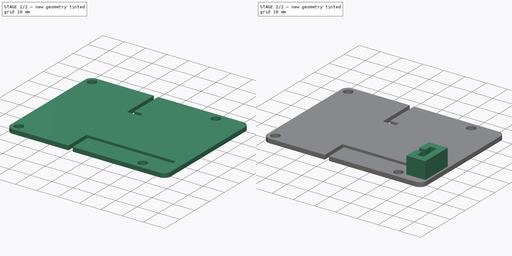
[diagram: build sequence overview — one tinted view per stage of 2, left to right]
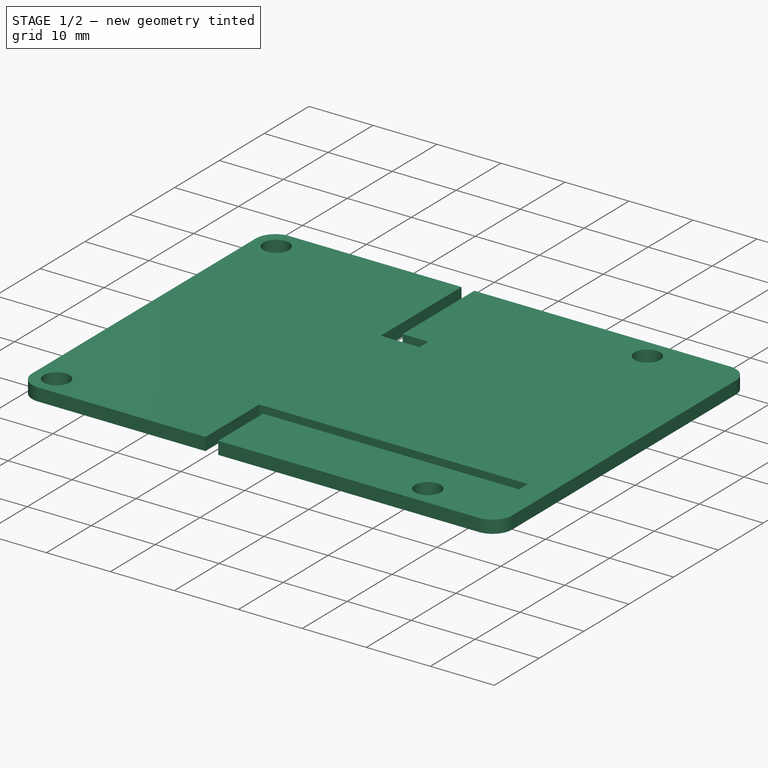
[diagram: stage 1 of 2 — iso view after this stage's code; geometry added in this stage tinted green]
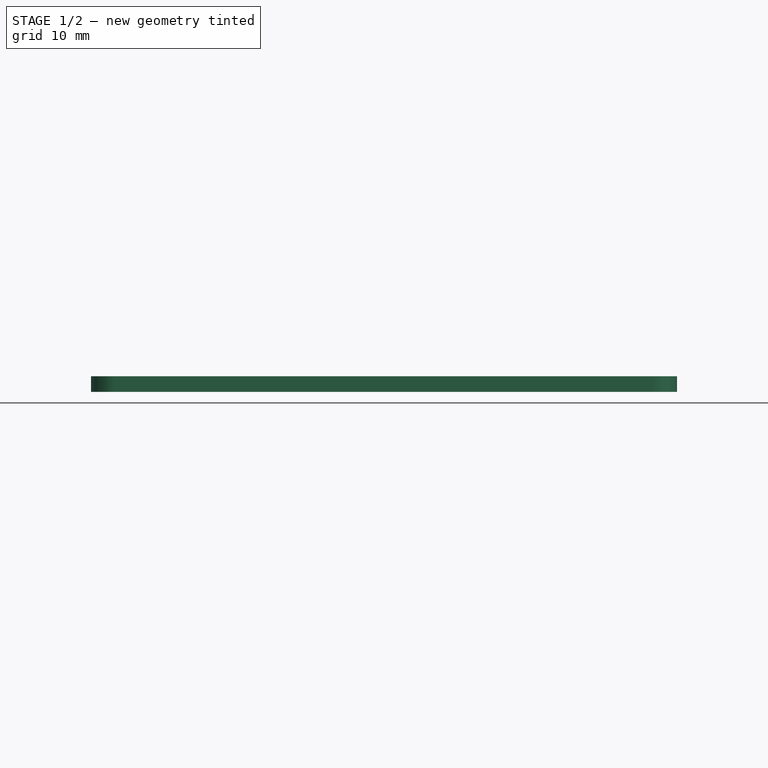
[diagram: stage 1 of 2 — front view after this stage's code; geometry added in this stage tinted green]
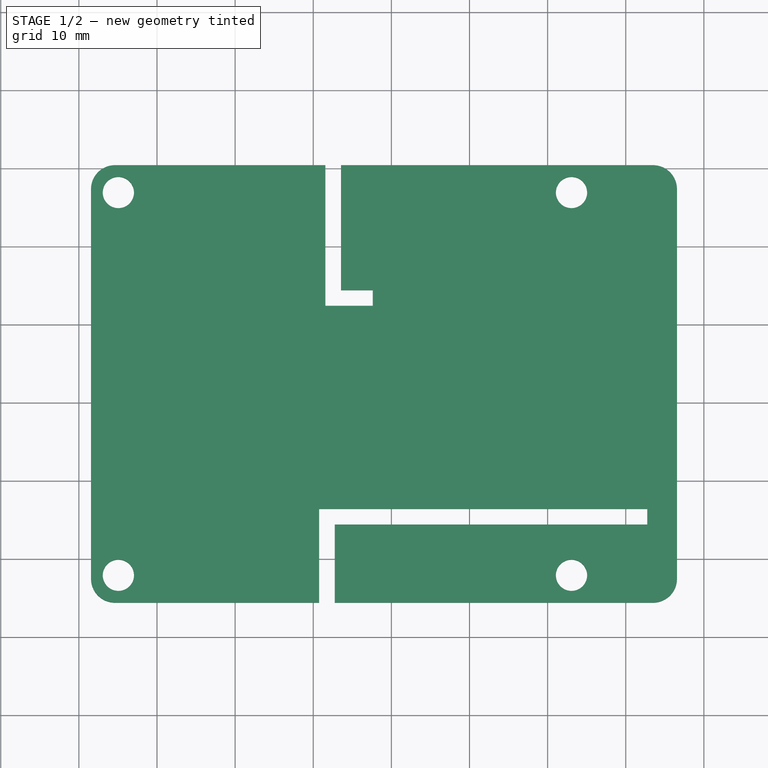
[diagram: stage 1 of 2 — top view after this stage's code; geometry added in this stage tinted green]
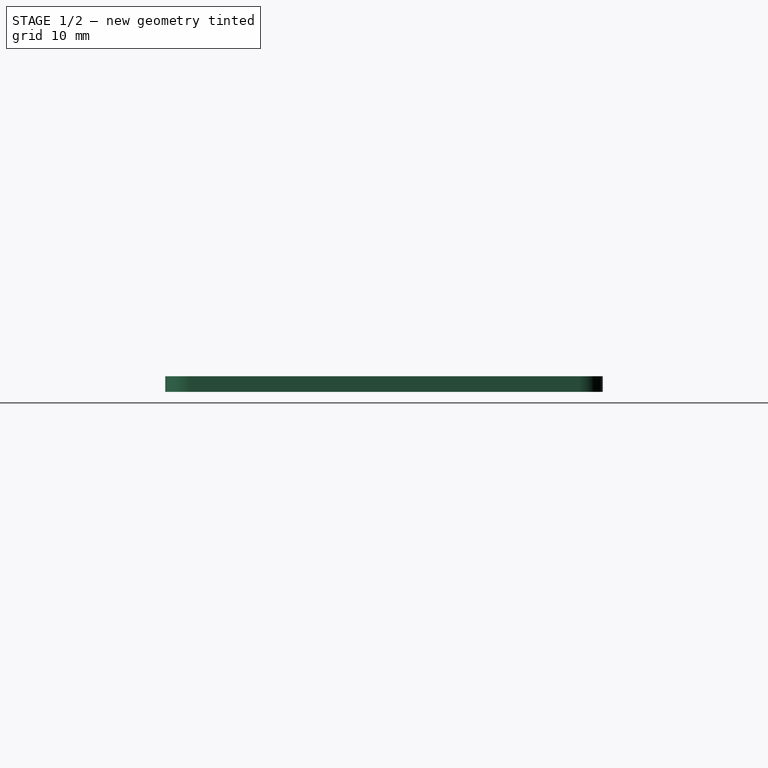
[diagram: stage 1 of 2 — right view after this stage's code; geometry added in this stage tinted green]
FCSTD DOCUMENT  (FreeCAD 0.21R33694 (Git))
Label: LoRaWAN_Gateway_hat_cover
License: All rights reserved
LicenseURL: http://en.wikipedia.org/wiki/All_rights_reserved
objects: Sketcher::SketchObject×2, PartDesign::Pad×2, Part::Feature×1, PartDesign::SubShapeBinder×1, PartDesign::Body×1
note: 9 computed .brp shape members not serialized (recipe doc carries the construction recipe); baked Part::Feature solids carry a one-line shape summary decoded from their .brp

FEATURE [Part::Feature] Part__Feature  label="Raspberry Pi 3 Light Version"
  shape: bbox 89.96 x 57.63 x 18.91 mm, 9075 faces, 217 solids (baked)
FEATURE [PartDesign::SubShapeBinder] Binder
  BindCopyOnChange = 0
  BindMode = 0
  ClaimChildren = false
  Context = -> Body [Binder.]
  Fuse = false
  MakeFace = true
  OffsetFill = false
  OffsetIntersection = false
  OffsetJoinType = 0
  OffsetOpenResult = false
  PartialLoad = false
  Relative = true
  Support = -> [Part__Feature]
  _Version = 2
FEATURE [Sketcher::SketchObject] Sketch001
  ExternalGeometry = -> [Binder]
  FullyConstrained = false
  MapMode = 5
  Support = -> [XY_Plane]
  sketch-geometry (24):
    g0: LineSegment StartX=-45.3809 StartY=30.4107 StartZ=0 EndX=-18.442 EndY=30.4107 EndZ=0
    g1: LineSegment StartX=26.558 StartY=27.3472 StartZ=0 EndX=26.558 EndY=-22.5308 EndZ=0
    g2: LineSegment StartX=23.4969 StartY=-25.5919 StartZ=0 EndX=-17.2391 EndY=-25.5919 EndZ=0
    g3: LineSegment StartX=-48.442 StartY=-22.5282 StartZ=0 EndX=-48.442 EndY=27.3496 EndZ=0
    g4: ArcOfCircle CenterX=-45.3809 CenterY=27.3496 CenterZ=0 NormalX=0 NormalY=0 NormalZ=1 AngleXU=0 Radius=3.0611 StartAngle=1.5708 EndAngle=3.14159
    g5: ArcOfCircle CenterX=23.4969 CenterY=27.3472 CenterZ=0 NormalX=0 NormalY=0 NormalZ=1 AngleXU=0 Radius=3.0611 StartAngle=0 EndAngle=1.57075
    g6: ArcOfCircle CenterX=23.4969 CenterY=-22.5308 CenterZ=0 NormalX=0 NormalY=0 NormalZ=1 AngleXU=0 Radius=3.0611 StartAngle=4.71239 EndAngle=6.28319
    g7: ArcOfCircle CenterX=-45.3809 CenterY=-22.5282 CenterZ=0 NormalX=0 NormalY=0 NormalZ=1 AngleXU=0 Radius=3.0611 StartAngle=3.14159 EndAngle=4.71236
    g8: Circle CenterX=-44.942 CenterY=26.9107 CenterZ=0 NormalX=0 NormalY=0 NormalZ=1 AngleXU=0 Radius=2
    g9: Circle CenterX=13.058 CenterY=26.9107 CenterZ=0 NormalX=0 NormalY=0 NormalZ=1 AngleXU=0 Radius=2
    g10: Circle CenterX=13.058 CenterY=-22.0893 CenterZ=0 NormalX=0 NormalY=0 NormalZ=1 AngleXU=0 Radius=2
    g11: Circle CenterX=-44.942 CenterY=-22.0893 CenterZ=0 NormalX=0 NormalY=0 NormalZ=1 AngleXU=0 Radius=2
    g12: LineSegment StartX=-16.442 StartY=30.4107 StartZ=0 EndX=-16.442 EndY=14.4114 EndZ=0
    g13: LineSegment StartX=-18.442 StartY=12.4114 StartZ=0 EndX=-12.3842 EndY=12.4114 EndZ=0
    g14: LineSegment StartX=-12.3842 StartY=12.4114 StartZ=0 EndX=-12.3842 EndY=14.4114 EndZ=0
    g15: LineSegment StartX=-12.3842 StartY=14.4114 StartZ=0 EndX=-16.442 EndY=14.4114 EndZ=0
    g16: LineSegment StartX=-16.442 StartY=30.4107 StartZ=0 EndX=23.4971 EndY=30.4083 EndZ=0
    g17: LineSegment StartX=-18.442 StartY=30.4107 StartZ=0 EndX=-18.442 EndY=12.4114 EndZ=0
    g18: LineSegment StartX=-19.2391 StartY=-25.5893 StartZ=0 EndX=-19.2391 EndY=-13.5893 EndZ=0
    g19: LineSegment StartX=-19.2391 StartY=-13.5893 StartZ=0 EndX=22.7609 EndY=-13.5893 EndZ=0
    g20: LineSegment StartX=22.7609 StartY=-13.5893 StartZ=0 EndX=22.7609 EndY=-15.5893 EndZ=0
    g21: LineSegment StartX=22.7609 StartY=-15.5893 StartZ=0 EndX=-17.2391 EndY=-15.5893 EndZ=0
    g22: LineSegment StartX=-17.2391 StartY=-15.5893 StartZ=0 EndX=-17.2391 EndY=-25.5919 EndZ=0
    g23: LineSegment StartX=-19.2391 StartY=-25.5893 StartZ=0 EndX=-45.3809 EndY=-25.5893 EndZ=0
  constraints (57):
    c: Horizontal(g0)
    c: Horizontal(g2)
    c: Vertical(g1)
    c: Vertical(g3)
    c: Tangent(g0,g4) = 1.5708
    c: Tangent(g3,g4) = 1.5708
    c: Coincident(g16,g5) = 1.5708
    c: Tangent(g1,g5) = 1.5708
    c: Tangent(g2,g6) = 1.5708
    c: Tangent(g1,g6) = 1.5708
    c: Coincident(g23,g7) = 1.5708
    c: Tangent(g3,g7) = 1.5708
    c: Coincident(g8,g-3)
    c: Coincident(g9,g-4)
    c: Coincident(g10,g-8)
    c: Coincident(g11,g-7)
    c: Equal(g4,g5)
    c: Equal(g5,g6)
    c: Equal(g6,g7)
    c: Horizontal(g0,g-5)
    c: Vertical(g-6,g3)
    c: Horizontal(g23,g-9)
    c: Diameter(g8) = 4
    c: Equal(g9,g11)
    c: Equal(g11,g10)
    c: Equal(g8,g9)
    c: DistanceX(g3,g1) = 75
    c: Vertical(g12)
    c: Coincident(g13,g14)
    c: Coincident(g14,g15)
    c: Horizontal(g13)
    c: Horizontal(g15)
    c: Vertical(g14)
    c: DistanceX(g3,g0) = 30
    c: DistanceX(g0,g12) = 2
    c: DistanceY(g14,g14) = 2
    c: Coincident(g12,g16)
    c: Coincident(g15,g12)
    c: Coincident(g17,g0)
    c: Coincident(g17,g13)
    c: Vertical(g17)
    c: Vertical(g18)
    c: Coincident(g18,g19)
    c: Horizontal(g19)
    c: Coincident(g19,g20)
    c: Coincident(g20,g21)
    c: Horizontal(g21)
    c: Coincident(g21,g22)
    c: Coincident(g2,g22)
    c: Coincident(g23,g18)
    c: Vertical(g22)
    c: Vertical(g20)
    c: DistanceY(g20,g20) = 2
    c: DistanceX(g18,g2) = 2
    c: DistanceY(g18,g18) = 12
    c: Horizontal(g23)
    c: DistanceX(g19,g19) = 42
FEATURE [PartDesign::Pad] Pad
  Direction = (0,0,1)
  Length = 2
  Length2 = 10
  Profile = -> Sketch001
  ReferenceAxis = -> Sketch001 [N_Axis]
  Type = 0
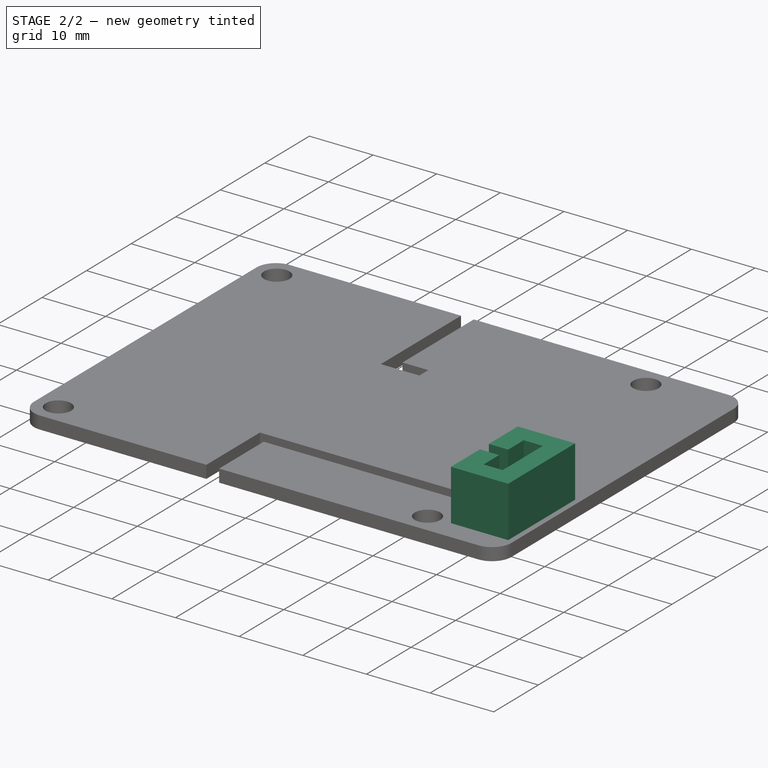
[diagram: stage 2 of 2 — iso view after this stage's code; geometry added in this stage tinted green]
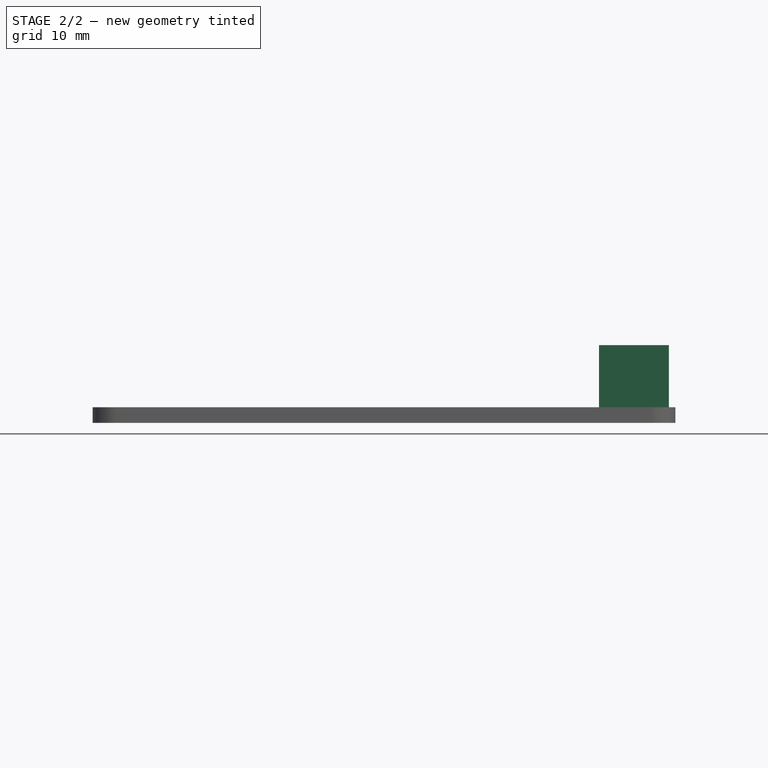
[diagram: stage 2 of 2 — front view after this stage's code; geometry added in this stage tinted green]
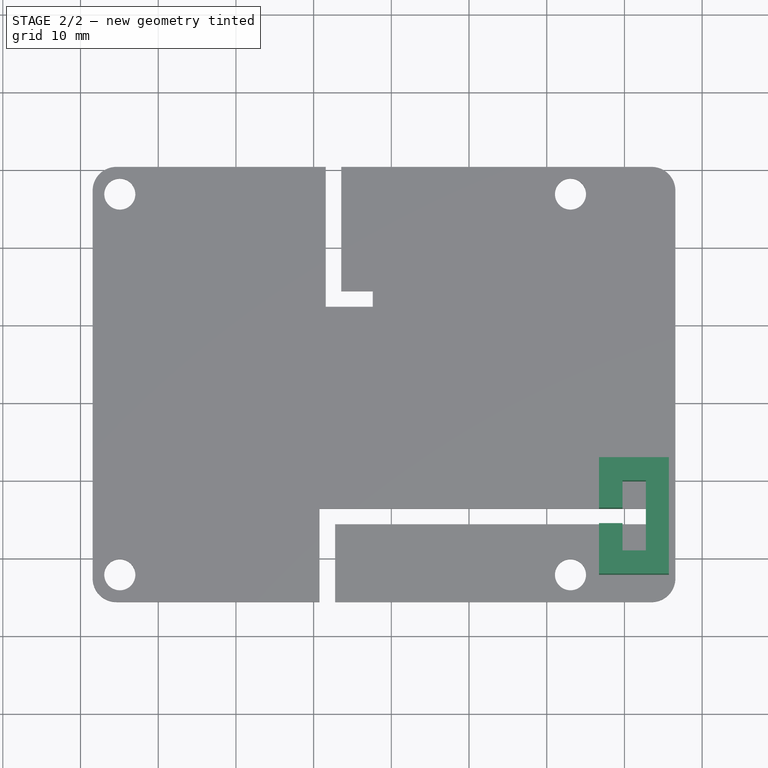
[diagram: stage 2 of 2 — top view after this stage's code; geometry added in this stage tinted green]
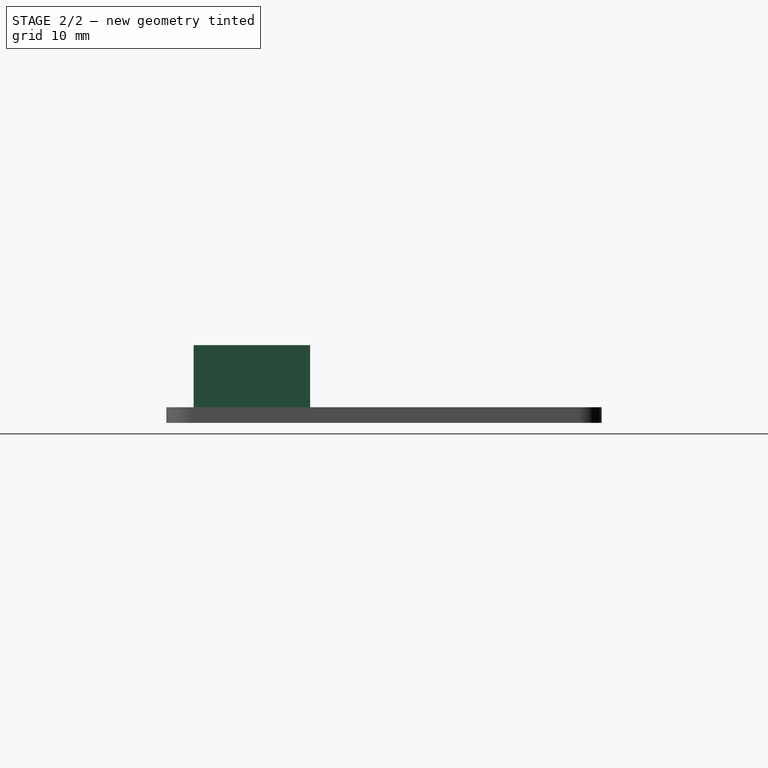
[diagram: stage 2 of 2 — right view after this stage's code; geometry added in this stage tinted green]
FEATURE [Sketcher::SketchObject] Sketch
  ExternalGeometry = -> [Pad]
  FullyConstrained = false
  MapMode = 5
  Placement = pos=(0,0,2) rot=(0,0,1;0rad)
  Support = -> [Pad]
  sketch-geometry (16):
    g0: LineSegment StartX=16.7292 StartY=-7.09062 StartZ=0 EndX=25.7292 EndY=-7.09062 EndZ=0
    g1: LineSegment StartX=25.7292 StartY=-7.09062 StartZ=0 EndX=25.7292 EndY=-22.0906 EndZ=0
    g2: LineSegment StartX=25.7292 StartY=-22.0906 StartZ=0 EndX=16.7321 EndY=-22.0906 EndZ=0
    g3: LineSegment StartX=16.7321 StartY=-22.0906 StartZ=0 EndX=16.7321 EndY=-15.592 EndZ=0
    g4: LineSegment StartX=16.7292 StartY=-7.09062 StartZ=0 EndX=22.7609 EndY=-13.5893 EndZ=0
    g5: LineSegment StartX=22.7609 StartY=-15.5893 StartZ=0 EndX=16.7321 EndY=-22.0906 EndZ=0
    g6: LineSegment StartX=16.7292 StartY=-13.5893 StartZ=0 EndX=19.7609 EndY=-13.5893 EndZ=0
    g7: LineSegment StartX=19.7609 StartY=-13.5893 StartZ=0 EndX=19.7609 EndY=-10.0906 EndZ=0
    g8: LineSegment StartX=19.7609 StartY=-10.0906 StartZ=0 EndX=22.7609 EndY=-10.0906 EndZ=0
    g9: LineSegment StartX=22.7609 StartY=-10.0906 StartZ=0 EndX=22.7609 EndY=-19.0906 EndZ=0
    g10: LineSegment StartX=22.7609 StartY=-19.0906 StartZ=0 EndX=19.7609 EndY=-19.0906 EndZ=0
    g11: LineSegment StartX=19.7609 StartY=-19.0906 StartZ=0 EndX=19.7609 EndY=-15.592 EndZ=0
    g12: LineSegment StartX=19.7609 StartY=-15.592 StartZ=0 EndX=16.7321 EndY=-15.592 EndZ=0
    g13: LineSegment StartX=16.7292 StartY=-13.5893 StartZ=0 EndX=16.7292 EndY=-7.09062 EndZ=0
    g14: LineSegment StartX=22.7609 StartY=-10.0906 StartZ=0 EndX=25.7292 EndY=-7.09062 EndZ=0
    g15: LineSegment StartX=22.7609 StartY=-19.0906 StartZ=0 EndX=25.7292 EndY=-22.0906 EndZ=0
  constraints (42):
    c: Coincident(g0,g1)
    c: Coincident(g1,g2)
    c: Coincident(g2,g3)
    c: Coincident(g13,g0)
    c: Horizontal(g0)
    c: Horizontal(g2)
    c: Vertical(g1)
    c: Vertical(g3)
    c: DistanceY(g1,g1) = 15
    c: DistanceX(g0,g0) = 9
    c: Coincident(g4,g0)
    c: Coincident(g4,g-3)
    c: Coincident(g5,g-3)
    c: Coincident(g5,g2)
    c: Equal(g4,g5)
    c: Horizontal(g6)
    c: Coincident(g6,g7)
    c: Vertical(g7)
    c: Coincident(g7,g8)
    c: Horizontal(g8)
    c: Coincident(g8,g9)
    c: Vertical(g9)
    c: Coincident(g9,g10)
    c: Horizontal(g10)
    c: Coincident(g10,g11)
    c: Vertical(g11)
    c: Coincident(g11,g12)
    c: Horizontal(g12)
    c: Coincident(g3,g12)
    c: Coincident(g13,g6)
    c: Vertical(g6,g11)
    c: DistanceX(g8,g8) = 3
    c: DistanceY(g9,g9) = 9
    c: Equal(g7,g11)
    c: Coincident(g14,g8)
    c: Coincident(g14,g0)
    c: Coincident(g15,g9)
    c: Coincident(g15,g1)
    c: Equal(g14,g15)
    c: DistanceY(g-3,g-3) = 2
    c: Horizontal(g6,g4)
    c: Vertical(g8,g4)
FEATURE [PartDesign::Pad] Pad001
  BaseFeature = -> Pad
  Direction = (0,0,1)
  Length = 8
  Length2 = 10
  Profile = -> Sketch
  ReferenceAxis = -> Sketch [N_Axis]
  Type = 0
FEATURE [PartDesign::Body] Body  label="hatCover"
  Group = -> [Binder,Sketch001,Pad,Sketch,Pad001]
  Origin = -> Origin
  Placement = pos=(0,0,19) rot=(0,0,1;0rad)
  Tip = -> Pad001
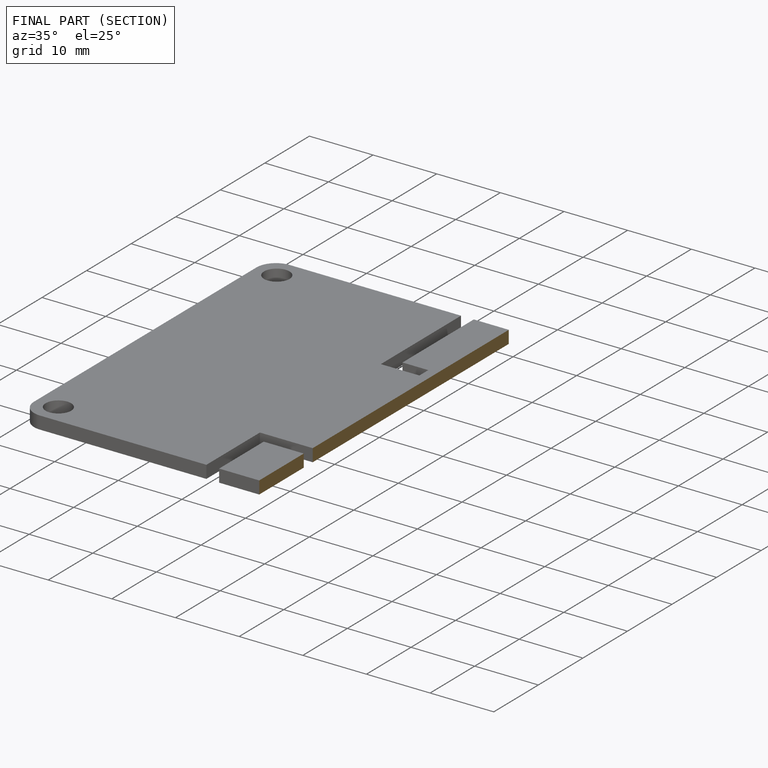
[diagram: finished part — half-section view (interior)]
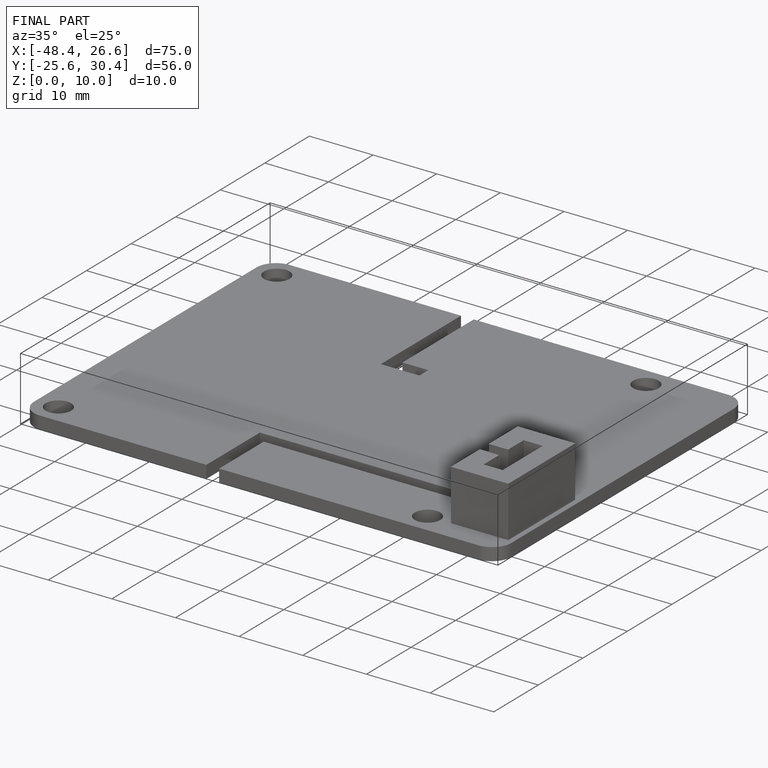
[diagram: finished part — iso view with bounding-box wireframe]
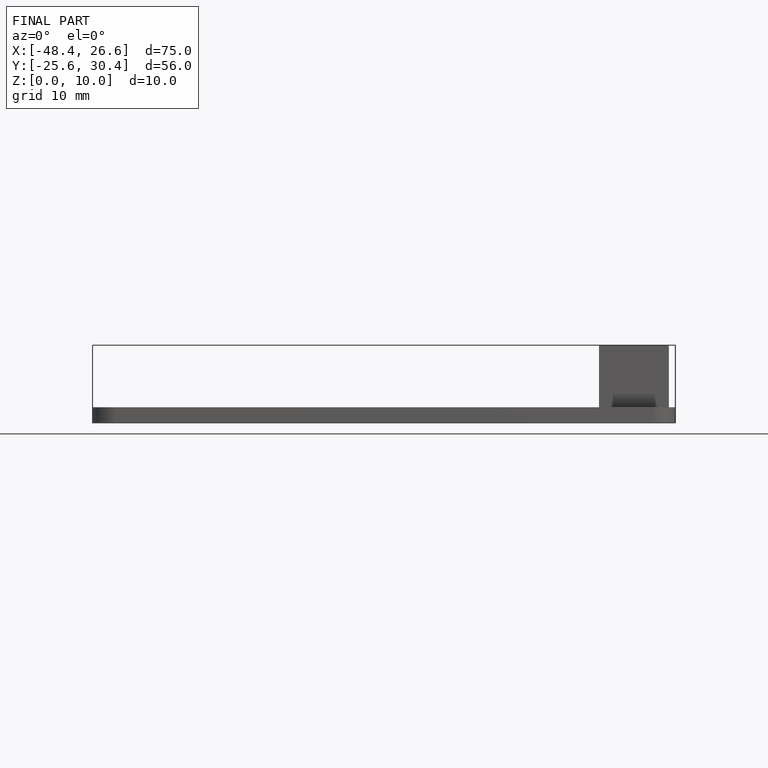
[diagram: finished part — front view with bounding-box wireframe]
